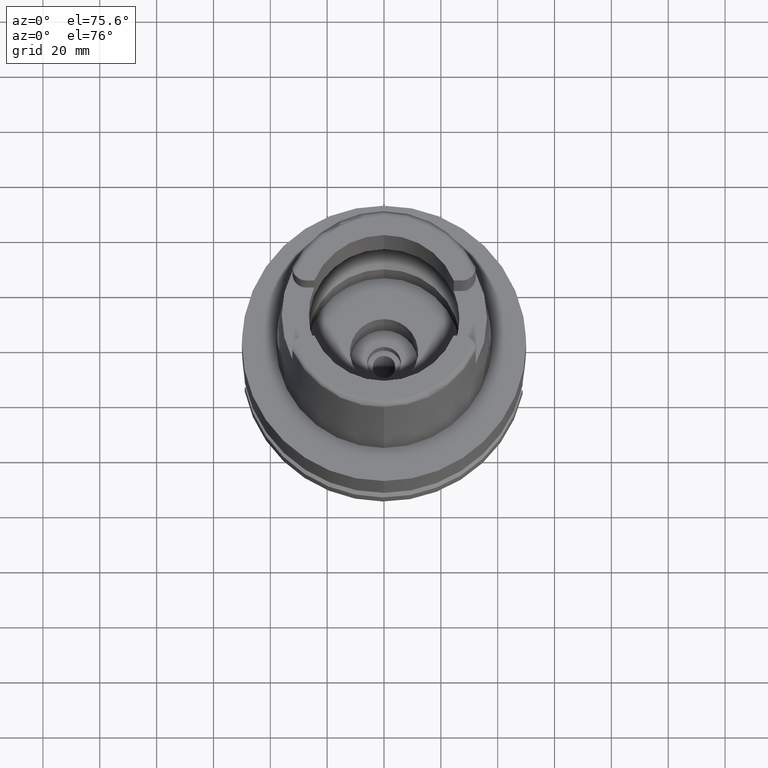
[diagram: clean part render]
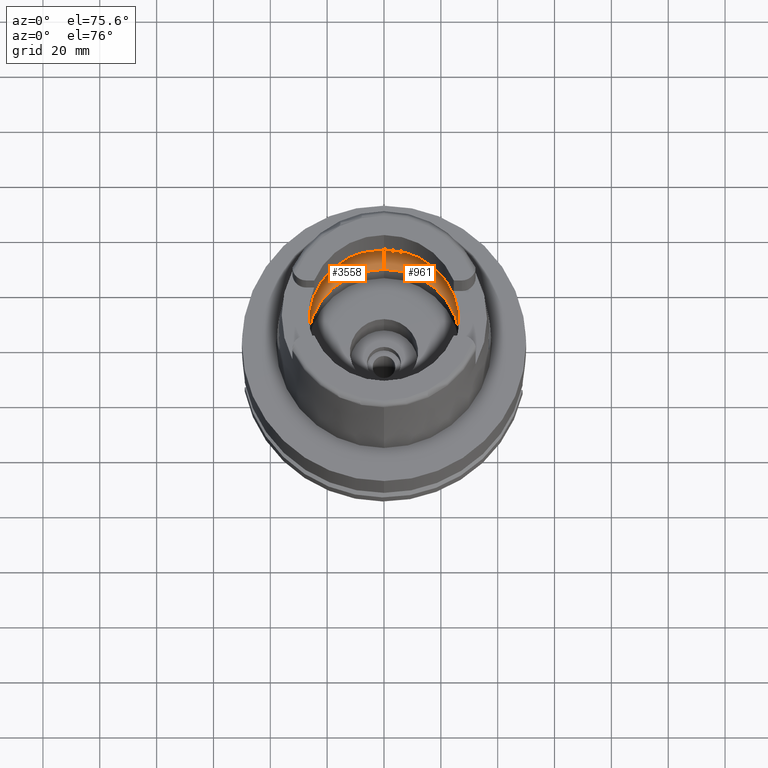
[diagram: same view with one multi-face feature highlighted, each face labeled with its STEP entity id]
A machine part, auxiliary view. The highlighted faces form ONE feature: a constant-radius fillet chain: 2 tangent blend faces with common blend radius 12 mm. The faces share edges in the B-rep.
Their STEP definitions:
[1] entity #961 (Torus):
#26 = CARTESIAN_POINT ( 'NONE',  ( 31.45843229728999901, -1.626122314408000147, 9.205188491873000700 ) ) ;
#42 = ORIENTED_EDGE ( 'NONE', *, *, #1919, .F. ) ;
#50 = AXIS2_PLACEMENT_3D ( 'NONE', #401, #5802, #2319 ) ;
#96 = CARTESIAN_POINT ( 'NONE',  ( 0.0000000000000000000, -31.50000000000000000, 9.496624327025999790 ) ) ;
#102 = VERTEX_POINT ( 'NONE', #4903 ) ;
#105 = DIRECTION ( 'NONE',  ( 0.0000000000000000000, -0.6166666666667049990, -0.7872243785746061429 ) ) ;
#206 = CARTESIAN_POINT ( 'NONE',  ( 31.48416663622000300, 0.8216256622719000369, 9.037606172252001357 ) ) ;
#318 = ORIENTED_EDGE ( 'NONE', *, *, #955, .F. ) ;
#340 = CIRCLE ( 'NONE', #5445, 11.99999999999999822 ) ;
#353 = VERTEX_POINT ( 'NONE', #4393 ) ;
#401 = CARTESIAN_POINT ( 'NONE',  ( 0.0000000000000000000, 0.0000000000000000000, 0.04993178413023999923 ) ) ;
#508 = ORIENTED_EDGE ( 'NONE', *, *, #4139, .T. ) ;
#575 = DIRECTION ( 'NONE',  ( 0.9971171061384295209, -0.07587803796965221503, 0.0000000000000000000 ) ) ;
#661 = DIRECTION ( 'NONE',  ( 0.0000000000000000000, 0.0000000000000000000, -1.000000000000000000 ) ) ;
#701 = DIRECTION ( 'NONE',  ( 0.0000000000000000000, 0.0000000000000000000, 1.000000000000000000 ) ) ;
#743 = CARTESIAN_POINT ( 'NONE',  ( 31.45843215351000310, 1.626125992769999806, 9.205189397203000112 ) ) ;
#877 = B_SPLINE_CURVE_WITH_KNOTS ( 'NONE', 3,
 ( #4987, #5964, #743, #206, #1160, #5931 ),
 .UNSPECIFIED., .F., .F.,
 ( 4, 1, 1, 4 ),
 ( 0.0000000000000000000, 0.3333333333333000081, 0.6666666666667000474, 1.000000000000000000 ),
 .UNSPECIFIED. ) ;
#896 = CARTESIAN_POINT ( 'NONE',  ( 0.0000000000000000000, -26.89999999999999858, 0.04993178413023999923 ) ) ;
#955 = EDGE_CURVE ( 'NONE', #975, #4703, #4319, .T. ) ;
#961 = ADVANCED_FACE ( 'NONE', ( #4419 ), #5215, .F. ) ;
#975 = VERTEX_POINT ( 'NONE', #4386 ) ;
#1160 = CARTESIAN_POINT ( 'NONE',  ( 31.48971910754000447, 0.2740808193429000172, 9.000000000000000000 ) ) ;
#1475 = CARTESIAN_POINT ( 'NONE',  ( 0.0000000000000000000, 0.0000000000000000000, 9.496624327025999790 ) ) ;
#1549 = CIRCLE ( 'NONE', #50, 26.89999999999999858 ) ;
#1578 = DIRECTION ( 'NONE',  ( 0.0000000000000000000, 1.000000000000000000, 0.0000000000000000000 ) ) ;
#1919 = EDGE_CURVE ( 'NONE', #353, #4180, #877, .T. ) ;
#2082 = VERTEX_POINT ( 'NONE', #896 ) ;
#2319 = DIRECTION ( 'NONE',  ( 0.0000000000000000000, -1.000000000000000000, 0.0000000000000000000 ) ) ;
#2406 = CARTESIAN_POINT ( 'NONE',  ( 31.48971910754000447, -0.2740816369240999806, 9.000000000000000000 ) ) ;
#2446 = DIRECTION ( 'NONE',  ( 0.0000000000000000000, 1.000000000000000000, 0.0000000000000000000 ) ) ;
#2487 = DIRECTION ( 'NONE',  ( -1.000000000000000000, 0.0000000000000000000, 0.0000000000000000000 ) ) ;
#2523 = EDGE_CURVE ( 'NONE', #4273, #353, #2548, .T. ) ;
#2525 = DIRECTION ( 'NONE',  ( 1.000000000000000000, 0.0000000000000000000, 0.0000000000000000000 ) ) ;
#2532 = AXIS2_PLACEMENT_3D ( 'NONE', #3506, #701, #1578 ) ;
#2548 = CIRCLE ( 'NONE', #3639, 31.50000000000000000 ) ;
#2551 = CARTESIAN_POINT ( 'NONE',  ( 0.0000000000000000000, 0.0000000000000000000, 9.496624327025999790 ) ) ;
#2774 = CARTESIAN_POINT ( 'NONE',  ( 31.40918884336000616, -2.390158196043999705, 9.496624327025999790 ) ) ;
#3078 = CARTESIAN_POINT ( 'NONE',  ( 0.0000000000000000000, 19.50000000000000000, 9.496624327025999790 ) ) ;
#3218 = ORIENTED_EDGE ( 'NONE', *, *, #5249, .F. ) ;
#3254 = EDGE_CURVE ( 'NONE', #4180, #975, #4802, .T. ) ;
#3350 = ORIENTED_EDGE ( 'NONE', *, *, #4972, .F. ) ;
#3506 = CARTESIAN_POINT ( 'NONE',  ( 0.0000000000000000000, 0.0000000000000000000, 9.496624327025999790 ) ) ;
#3580 = DIRECTION ( 'NONE',  ( 0.0000000000000000000, 0.6166666666667049990, -0.7872243785746061429 ) ) ;
#3618 = AXIS2_PLACEMENT_3D ( 'NONE', #2551, #5919, #575 ) ;
#3631 = CIRCLE ( 'NONE', #4435, 11.99999999999999822 ) ;
#3639 = AXIS2_PLACEMENT_3D ( 'NONE', #1475, #661, #2446 ) ;
#3883 = CARTESIAN_POINT ( 'NONE',  ( 0.0000000000000000000, -19.50000000000000000, 9.496624327025999790 ) ) ;
#4139 = EDGE_CURVE ( 'NONE', #2082, #4703, #3631, .T. ) ;
#4180 = VERTEX_POINT ( 'NONE', #4691 ) ;
#4258 = CARTESIAN_POINT ( 'NONE',  ( 31.48416657243999950, -0.8216274657312000462, 9.037606582851999804 ) ) ;
#4273 = VERTEX_POINT ( 'NONE', #5155 ) ;
#4319 = CIRCLE ( 'NONE', #3618, 31.49999999999998934 ) ;
#4386 = CARTESIAN_POINT ( 'NONE',  ( 31.40918884336000616, -2.390158196043999705, 9.496624327025999790 ) ) ;
#4393 = CARTESIAN_POINT ( 'NONE',  ( 31.40918884336000616, 2.390158196043999705, 9.496624327025999790 ) ) ;
#4419 = FACE_OUTER_BOUND ( 'NONE', #4852, .T. ) ;
#4435 = AXIS2_PLACEMENT_3D ( 'NONE', #3883, #2487, #105 ) ;
#4691 = CARTESIAN_POINT ( 'NONE',  ( 31.48971910754000447, 0.0000000000000000000, 9.000000000000000000 ) ) ;
#4703 = VERTEX_POINT ( 'NONE', #96 ) ;
#4802 = B_SPLINE_CURVE_WITH_KNOTS ( 'NONE', 3,
 ( #6091, #2406, #4258, #26, #6125, #2774 ),
 .UNSPECIFIED., .F., .F.,
 ( 4, 1, 1, 4 ),
 ( 0.0000000000000000000, 0.3333333333333000081, 0.6666666666667000474, 1.000000000000000000 ),
 .UNSPECIFIED. ) ;
#4852 = EDGE_LOOP ( 'NONE', ( #42, #5863, #3218, #3350, #508, #318, #5263 ) ) ;
#4903 = CARTESIAN_POINT ( 'NONE',  ( 0.0000000000000000000, 26.89999999999999858, 0.04993178413023999923 ) ) ;
#4972 = EDGE_CURVE ( 'NONE', #2082, #102, #1549, .T. ) ;
#4987 = CARTESIAN_POINT ( 'NONE',  ( 31.40918884336000616, 2.390158196043999705, 9.496624327025999790 ) ) ;
#5155 = CARTESIAN_POINT ( 'NONE',  ( 0.0000000000000000000, 31.50000000000000000, 9.496624327025999790 ) ) ;
#5215 = TOROIDAL_SURFACE ( 'NONE', #2532, 19.50000000000000000, 12.00000000000000000 ) ;
#5249 = EDGE_CURVE ( 'NONE', #102, #4273, #340, .T. ) ;
#5263 = ORIENTED_EDGE ( 'NONE', *, *, #3254, .F. ) ;
#5445 = AXIS2_PLACEMENT_3D ( 'NONE', #3078, #2525, #3580 ) ;
#5802 = DIRECTION ( 'NONE',  ( 0.0000000000000000000, 0.0000000000000000000, 1.000000000000000000 ) ) ;
#5863 = ORIENTED_EDGE ( 'NONE', *, *, #2523, .F. ) ;
#5919 = DIRECTION ( 'NONE',  ( 0.0000000000000000000, 0.0000000000000000000, -1.000000000000000000 ) ) ;
#5931 = CARTESIAN_POINT ( 'NONE',  ( 31.48971910754000447, 0.0000000000000000000, 9.000000000000000000 ) ) ;
#5964 = CARTESIAN_POINT ( 'NONE',  ( 31.42817530553000083, 2.140656143518000487, 9.388263675090000149 ) ) ;
#6091 = CARTESIAN_POINT ( 'NONE',  ( 31.48971910754000447, 0.0000000000000000000, 9.000000000000000000 ) ) ;
#6125 = CARTESIAN_POINT ( 'NONE',  ( 31.42817542026000410, -2.140654635826999996, 9.388263020288000860 ) ) ;
[2] entity #3558 (Torus):
#96 = CARTESIAN_POINT ( 'NONE',  ( 0.0000000000000000000, -31.50000000000000000, 9.496624327025999790 ) ) ;
#102 = VERTEX_POINT ( 'NONE', #4903 ) ;
#105 = DIRECTION ( 'NONE',  ( 0.0000000000000000000, -0.6166666666667049990, -0.7872243785746061429 ) ) ;
#111 = CARTESIAN_POINT ( 'NONE',  ( -31.48971910754000447, 0.0000000000000000000, 9.000000000000000000 ) ) ;
#134 = DIRECTION ( 'NONE',  ( 0.0000000000000000000, 1.000000000000000000, 0.0000000000000000000 ) ) ;
#330 = CARTESIAN_POINT ( 'NONE',  ( 0.0000000000000000000, 0.0000000000000000000, 9.496624327025999790 ) ) ;
#340 = CIRCLE ( 'NONE', #5445, 11.99999999999999822 ) ;
#384 = B_SPLINE_CURVE_WITH_KNOTS ( 'NONE', 3,
 ( #4082, #5574, #5602, #3137, #3196, #4178 ),
 .UNSPECIFIED., .F., .F.,
 ( 4, 1, 1, 4 ),
 ( 0.0000000000000000000, 0.3333333333333000081, 0.6666666666667000474, 1.000000000000000000 ),
 .UNSPECIFIED. ) ;
#392 = CARTESIAN_POINT ( 'NONE',  ( 0.0000000000000000000, 0.0000000000000000000, 9.496624327025999790 ) ) ;
#404 = EDGE_CURVE ( 'NONE', #1733, #5133, #548, .T. ) ;
#426 = FACE_OUTER_BOUND ( 'NONE', #2053, .T. ) ;
#526 = AXIS2_PLACEMENT_3D ( 'NONE', #330, #2255, #874 ) ;
#548 = B_SPLINE_CURVE_WITH_KNOTS ( 'NONE', 3,
 ( #3860, #5771, #3297, #1487, #929, #1651 ),
 .UNSPECIFIED., .F., .F.,
 ( 4, 1, 1, 4 ),
 ( 0.0000000000000000000, 0.3333333333333000081, 0.6666666666667000474, 1.000000000000000000 ),
 .UNSPECIFIED. ) ;
#858 = AXIS2_PLACEMENT_3D ( 'NONE', #392, #1873, #1780 ) ;
#874 = DIRECTION ( 'NONE',  ( -0.9971171061384295209, 0.07587803796965221503, 0.0000000000000000000 ) ) ;
#896 = CARTESIAN_POINT ( 'NONE',  ( 0.0000000000000000000, -26.89999999999999858, 0.04993178413023999923 ) ) ;
#929 = CARTESIAN_POINT ( 'NONE',  ( -31.42817526838999953, 2.140656631636999929, 9.388263887083001080 ) ) ;
#1010 = CARTESIAN_POINT ( 'NONE',  ( -31.40918884336000616, -2.390158196043999705, 9.496624327025999790 ) ) ;
#1319 = CARTESIAN_POINT ( 'NONE',  ( 0.0000000000000000000, 0.0000000000000000000, 9.496624327025999790 ) ) ;
#1347 = CIRCLE ( 'NONE', #1751, 31.50000000000000000 ) ;
#1354 = TOROIDAL_SURFACE ( 'NONE', #858, 19.50000000000000000, 12.00000000000000000 ) ;
#1487 = CARTESIAN_POINT ( 'NONE',  ( -31.45843209623000547, 1.626127188330999784, 9.205189758010000389 ) ) ;
#1567 = EDGE_CURVE ( 'NONE', #5133, #4273, #3122, .T. ) ;
#1651 = CARTESIAN_POINT ( 'NONE',  ( -31.40918884336000616, 2.390158196043999705, 9.496624327025999790 ) ) ;
#1678 = ORIENTED_EDGE ( 'NONE', *, *, #4139, .F. ) ;
#1733 = VERTEX_POINT ( 'NONE', #111 ) ;
#1751 = AXIS2_PLACEMENT_3D ( 'NONE', #1319, #6010, #3623 ) ;
#1780 = DIRECTION ( 'NONE',  ( 0.0000000000000000000, 1.000000000000000000, 0.0000000000000000000 ) ) ;
#1790 = ORIENTED_EDGE ( 'NONE', *, *, #404, .F. ) ;
#1873 = DIRECTION ( 'NONE',  ( 0.0000000000000000000, 0.0000000000000000000, 1.000000000000000000 ) ) ;
#2053 = EDGE_LOOP ( 'NONE', ( #3047, #1678, #2529, #3406, #2331, #1790, #4513 ) ) ;
#2082 = VERTEX_POINT ( 'NONE', #896 ) ;
#2255 = DIRECTION ( 'NONE',  ( 0.0000000000000000000, 0.0000000000000000000, -1.000000000000000000 ) ) ;
#2331 = ORIENTED_EDGE ( 'NONE', *, *, #1567, .F. ) ;
#2487 = DIRECTION ( 'NONE',  ( -1.000000000000000000, 0.0000000000000000000, 0.0000000000000000000 ) ) ;
#2525 = DIRECTION ( 'NONE',  ( 1.000000000000000000, 0.0000000000000000000, 0.0000000000000000000 ) ) ;
#2529 = ORIENTED_EDGE ( 'NONE', *, *, #6082, .F. ) ;
#3047 = ORIENTED_EDGE ( 'NONE', *, *, #4848, .F. ) ;
#3078 = CARTESIAN_POINT ( 'NONE',  ( 0.0000000000000000000, 19.50000000000000000, 9.496624327025999790 ) ) ;
#3122 = CIRCLE ( 'NONE', #526, 31.49999999999998934 ) ;
#3137 = CARTESIAN_POINT ( 'NONE',  ( -31.48416659375000037, -0.8216262390445000507, 9.037606438216000626 ) ) ;
#3196 = CARTESIAN_POINT ( 'NONE',  ( -31.48971910754000447, -0.2740811097498000448, 9.000000000000000000 ) ) ;
#3297 = CARTESIAN_POINT ( 'NONE',  ( -31.48416661469000033, 0.8216269012393999649, 9.037606318336999678 ) ) ;
#3406 = ORIENTED_EDGE ( 'NONE', *, *, #5249, .T. ) ;
#3558 = ADVANCED_FACE ( 'NONE', ( #426 ), #1354, .F. ) ;
#3580 = DIRECTION ( 'NONE',  ( 0.0000000000000000000, 0.6166666666667049990, -0.7872243785746061429 ) ) ;
#3623 = DIRECTION ( 'NONE',  ( 0.0000000000000000000, -1.000000000000000000, 0.0000000000000000000 ) ) ;
#3631 = CIRCLE ( 'NONE', #4435, 11.99999999999999822 ) ;
#3860 = CARTESIAN_POINT ( 'NONE',  ( -31.48971910754000447, 0.0000000000000000000, 9.000000000000000000 ) ) ;
#3883 = CARTESIAN_POINT ( 'NONE',  ( 0.0000000000000000000, -19.50000000000000000, 9.496624327025999790 ) ) ;
#4082 = CARTESIAN_POINT ( 'NONE',  ( -31.40918884336000616, -2.390158196043999705, 9.496624327025999790 ) ) ;
#4108 = AXIS2_PLACEMENT_3D ( 'NONE', #4951, #4510, #134 ) ;
#4139 = EDGE_CURVE ( 'NONE', #2082, #4703, #3631, .T. ) ;
#4178 = CARTESIAN_POINT ( 'NONE',  ( -31.48971910754000447, 0.0000000000000000000, 9.000000000000000000 ) ) ;
#4273 = VERTEX_POINT ( 'NONE', #5155 ) ;
#4435 = AXIS2_PLACEMENT_3D ( 'NONE', #3883, #2487, #105 ) ;
#4510 = DIRECTION ( 'NONE',  ( 0.0000000000000000000, 0.0000000000000000000, 1.000000000000000000 ) ) ;
#4513 = ORIENTED_EDGE ( 'NONE', *, *, #5807, .F. ) ;
#4703 = VERTEX_POINT ( 'NONE', #96 ) ;
#4848 = EDGE_CURVE ( 'NONE', #4703, #5962, #1347, .T. ) ;
#4903 = CARTESIAN_POINT ( 'NONE',  ( 0.0000000000000000000, 26.89999999999999858, 0.04993178413023999923 ) ) ;
#4932 = CARTESIAN_POINT ( 'NONE',  ( -31.40918884336000616, 2.390158196043999705, 9.496624327025999790 ) ) ;
#4951 = CARTESIAN_POINT ( 'NONE',  ( 0.0000000000000000000, 0.0000000000000000000, 0.04993178413023999923 ) ) ;
#5133 = VERTEX_POINT ( 'NONE', #4932 ) ;
#5155 = CARTESIAN_POINT ( 'NONE',  ( 0.0000000000000000000, 31.50000000000000000, 9.496624327025999790 ) ) ;
#5249 = EDGE_CURVE ( 'NONE', #102, #4273, #340, .T. ) ;
#5445 = AXIS2_PLACEMENT_3D ( 'NONE', #3078, #2525, #3580 ) ;
#5574 = CARTESIAN_POINT ( 'NONE',  ( -31.42817545703999826, -2.140654152532999621, 9.388262810390001434 ) ) ;
#5602 = CARTESIAN_POINT ( 'NONE',  ( -31.45843235400999660, -1.626121130666000170, 9.205188134635001518 ) ) ;
#5771 = CARTESIAN_POINT ( 'NONE',  ( -31.48971910754000447, 0.2740813517951999900, 9.000000000000000000 ) ) ;
#5807 = EDGE_CURVE ( 'NONE', #5962, #1733, #384, .T. ) ;
#5962 = VERTEX_POINT ( 'NONE', #1010 ) ;
#6010 = DIRECTION ( 'NONE',  ( 0.0000000000000000000, 0.0000000000000000000, -1.000000000000000000 ) ) ;
#6082 = EDGE_CURVE ( 'NONE', #102, #2082, #6096, .T. ) ;
#6096 = CIRCLE ( 'NONE', #4108, 26.89999999999999858 ) ;